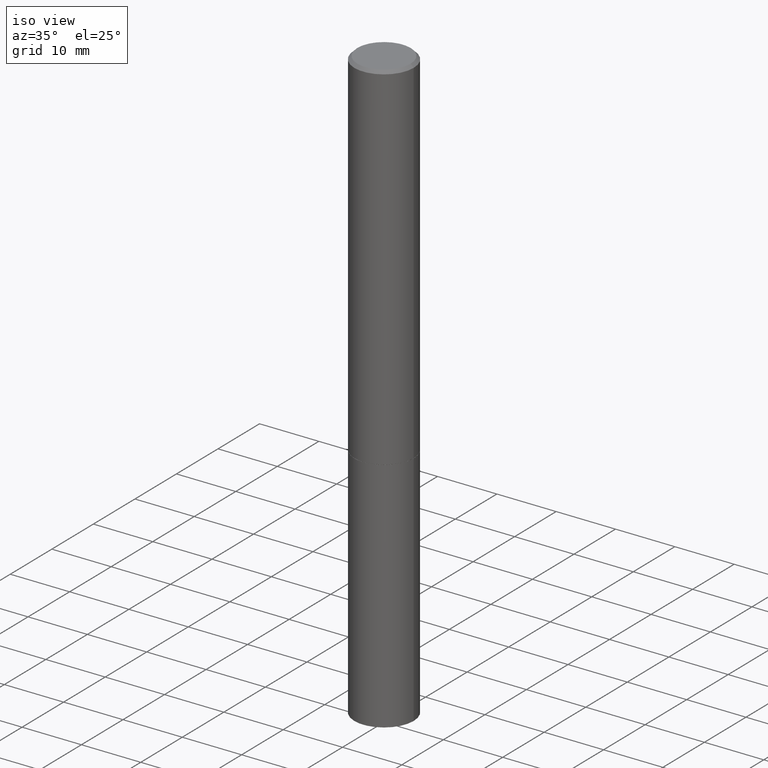
[diagram: clean part render]
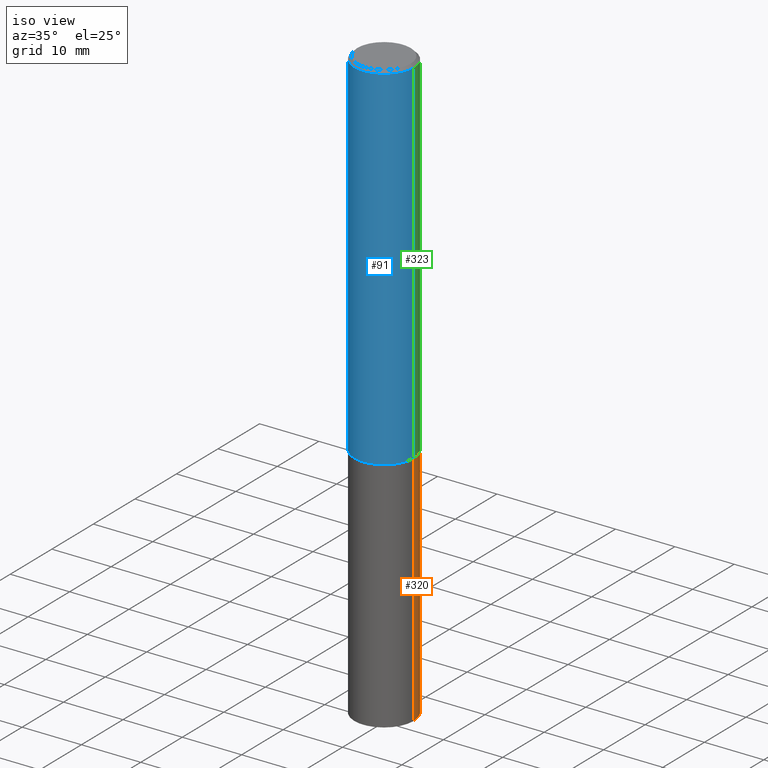
[diagram: same view with three faces highlighted in distinct colors, each labeled with its STEP entity id]
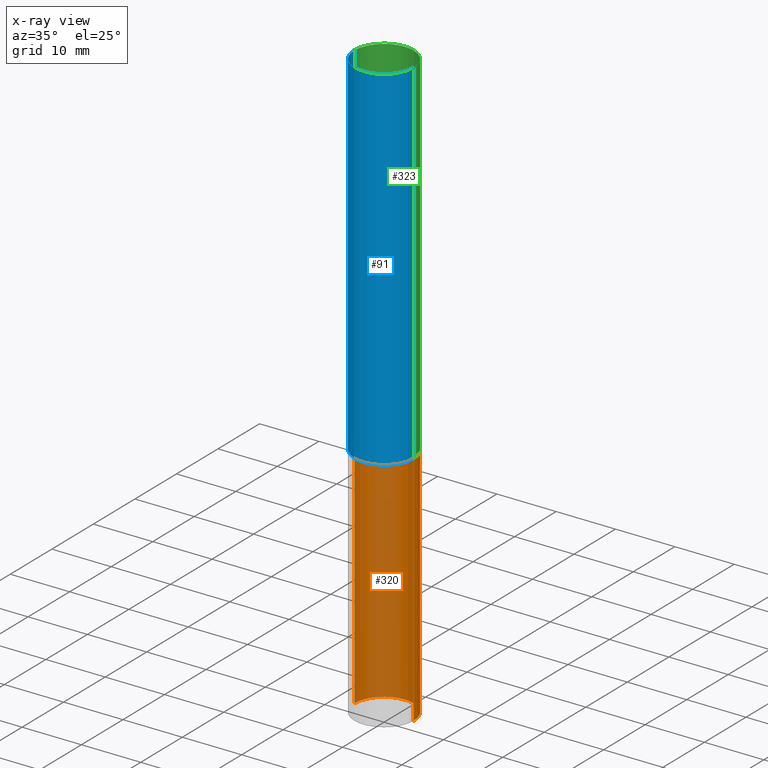
[diagram: x-ray of the same camera — body ghosted, the three highlighted faces saturated]
A machine part, iso view with three faces highlighted in distinct colors.
The next image is the same camera in x-ray (body ghosted, the three faces saturated) — at least one of them is partly hidden behind the body in this view.
Their STEP definitions:

[orange] entity #320 — the highlighted cylindrical surface (edge-blend (fillet) strip) has radius 5 mm, axis along (-0, 0, 1).
#1 = DIRECTION ( 'NONE',  ( -2.445468806185136877E-29, 3.491481338843145188E-15, 1.000000000000000000 ) ) ;
#15 = CARTESIAN_POINT ( 'NONE',  ( 0.000000000000000000, 0.000000000000000000, 0.000000000000000000 ) ) ;
#22 = ORIENTED_EDGE ( 'NONE', *, *, #25, .T. ) ;
#25 = EDGE_CURVE ( 'NONE', #173, #247, #142, .T. ) ;
#45 = AXIS2_PLACEMENT_3D ( 'NONE', #15, #267, #71 ) ;
#71 = DIRECTION ( 'NONE',  ( 1.000000000000000000, -6.982962677686265922E-15, 4.876176775795935793E-29 ) ) ;
#78 = DIRECTION ( 'NONE',  ( -2.445468806185136597E-29, 3.491481338843145583E-15, 1.000000000000000000 ) ) ;
#83 = EDGE_CURVE ( 'NONE', #272, #169, #88, .T. ) ;
#88 = LINE ( 'NONE', #197, #236 ) ;
#105 = CYLINDRICAL_SURFACE ( 'NONE', #45, 0.1968500000000000250 ) ;
#126 = FACE_OUTER_BOUND ( 'NONE', #229, .T. ) ;
#132 = CARTESIAN_POINT ( 'NONE',  ( 0.1968500000000000250, -9.622173421717819657E-15, -2.362199999999999633 ) ) ;
#142 = LINE ( 'NONE', #251, #290 ) ;
#153 = ORIENTED_EDGE ( 'NONE', *, *, #83, .F. ) ;
#157 = CARTESIAN_POINT ( 'NONE',  ( -0.1968500000000000250, -9.598066249476613733E-15, -3.937000000000000277 ) ) ;
#163 = DIRECTION ( 'NONE',  ( 1.000000000000000000, -6.982962677686267499E-15, 0.000000000000000000 ) ) ;
#169 = VERTEX_POINT ( 'NONE', #132 ) ;
#173 = VERTEX_POINT ( 'NONE', #157 ) ;
#177 = EDGE_CURVE ( 'NONE', #169, #247, #221, .T. ) ;
#193 = CARTESIAN_POINT ( 'NONE',  ( 5.776686413970529753E-29, -8.247577218615278049E-15, -2.362199999999999633 ) ) ;
#197 = CARTESIAN_POINT ( 'NONE',  ( 0.1968500000000000250, -1.374596203102541608E-15, 9.598753983154300858E-30 ) ) ;
#199 = ORIENTED_EDGE ( 'NONE', *, *, #234, .T. ) ;
#201 = DIRECTION ( 'NONE',  ( -2.445468806185136877E-29, 3.491481338843145188E-15, 1.000000000000000000 ) ) ;
#202 = CIRCLE ( 'NONE', #283, 0.1968500000000000250 ) ;
#221 = CIRCLE ( 'NONE', #326, 0.1968500000000000250 ) ;
#229 = EDGE_LOOP ( 'NONE', ( #199, #22, #284, #153 ) ) ;
#234 = EDGE_CURVE ( 'NONE', #272, #173, #202, .T. ) ;
#236 = VECTOR ( 'NONE', #1, 39.37007874015748143 ) ;
#247 = VERTEX_POINT ( 'NONE', #273 ) ;
#251 = CARTESIAN_POINT ( 'NONE',  ( -0.1968500000000000250, 1.398703375343757393E-15, -9.682923725166783677E-30 ) ) ;
#267 = DIRECTION ( 'NONE',  ( -2.445468806185136597E-29, 3.491481338843145583E-15, 1.000000000000000000 ) ) ;
#271 = DIRECTION ( 'NONE',  ( -2.445468806185136597E-29, 3.491481338843145583E-15, 1.000000000000000000 ) ) ;
#272 = VERTEX_POINT ( 'NONE', #325 ) ;
#273 = CARTESIAN_POINT ( 'NONE',  ( -0.1968500000000000250, -9.598066249476613733E-15, -2.362199999999999633 ) ) ;
#283 = AXIS2_PLACEMENT_3D ( 'NONE', #296, #78, #163 ) ;
#284 = ORIENTED_EDGE ( 'NONE', *, *, #177, .F. ) ;
#290 = VECTOR ( 'NONE', #201, 39.37007874015748143 ) ;
#296 = CARTESIAN_POINT ( 'NONE',  ( 9.627810689950883669E-29, -1.374596203102546341E-14, -3.937000000000000277 ) ) ;
#320 = ADVANCED_FACE ( 'NONE', ( #126 ), #105, .T. ) ;
#325 = CARTESIAN_POINT ( 'NONE',  ( 0.1968500000000000250, -1.512055823412800660E-14, -3.937000000000000277 ) ) ;
#326 = AXIS2_PLACEMENT_3D ( 'NONE', #193, #271, #362 ) ;
#362 = DIRECTION ( 'NONE',  ( 1.000000000000000000, -6.982962677686262766E-15, 0.000000000000000000 ) ) ;

[blue] entity #91 — the highlighted cylindrical surface (edge-blend (fillet) strip) has radius 5 mm, axis along (-0, 0, 1).
#17 = CIRCLE ( 'NONE', #143, 0.1968499999999997474 ) ;
#19 = CARTESIAN_POINT ( 'NONE',  ( 4.890937612370284544E-31, -6.982962677686307633E-17, -0.02000000000000004552 ) ) ;
#21 = CARTESIAN_POINT ( 'NONE',  ( -0.1968499999999998307, 1.398703375343756013E-15, -9.682923725166775270E-30 ) ) ;
#23 = CARTESIAN_POINT ( 'NONE',  ( 5.774240945164344150E-29, -8.244085737276433464E-15, -2.361199999999999743 ) ) ;
#34 = DIRECTION ( 'NONE',  ( -2.445468806185136597E-29, 3.491481338843145583E-15, 1.000000000000000000 ) ) ;
#39 = LINE ( 'NONE', #21, #174 ) ;
#76 = VERTEX_POINT ( 'NONE', #334 ) ;
#77 = AXIS2_PLACEMENT_3D ( 'NONE', #287, #34, #208 ) ;
#80 = VERTEX_POINT ( 'NONE', #224 ) ;
#84 = ORIENTED_EDGE ( 'NONE', *, *, #164, .F. ) ;
#91 = ADVANCED_FACE ( 'NONE', ( #346 ), #181, .T. ) ;
#104 = CARTESIAN_POINT ( 'NONE',  ( -0.1968499999999997474, 1.304766576325676732E-15, -0.02000000000000004552 ) ) ;
#115 = EDGE_LOOP ( 'NONE', ( #84, #191, #133, #279 ) ) ;
#119 = VECTOR ( 'NONE', #218, 39.37007874015748143 ) ;
#130 = CARTESIAN_POINT ( 'NONE',  ( 0.1968499999999999694, -9.618681940378976650E-15, -2.361199999999999743 ) ) ;
#133 = ORIENTED_EDGE ( 'NONE', *, *, #259, .T. ) ;
#136 = AXIS2_PLACEMENT_3D ( 'NONE', #23, #175, #328 ) ;
#143 = AXIS2_PLACEMENT_3D ( 'NONE', #19, #301, #265 ) ;
#160 = VERTEX_POINT ( 'NONE', #130 ) ;
#164 = EDGE_CURVE ( 'NONE', #76, #219, #39, .T. ) ;
#174 = VECTOR ( 'NONE', #216, 39.37007874015748143 ) ;
#175 = DIRECTION ( 'NONE',  ( -2.445468806185136597E-29, 3.491481338843145583E-15, 1.000000000000000000 ) ) ;
#180 = EDGE_CURVE ( 'NONE', #219, #80, #17, .T. ) ;
#181 = CYLINDRICAL_SURFACE ( 'NONE', #77, 0.1968499999999998307 ) ;
#191 = ORIENTED_EDGE ( 'NONE', *, *, #361, .T. ) ;
#208 = DIRECTION ( 'NONE',  ( 1.000000000000000000, -6.982962677686266711E-15, 4.876176775795935793E-29 ) ) ;
#213 = CARTESIAN_POINT ( 'NONE',  ( 0.1968499999999998307, -1.374596203102540425E-15, 9.598753983154291049E-30 ) ) ;
#216 = DIRECTION ( 'NONE',  ( -2.445468806185136877E-29, 3.491481338843145188E-15, 1.000000000000000000 ) ) ;
#218 = DIRECTION ( 'NONE',  ( -2.445468806185136877E-29, 3.491481338843145188E-15, 1.000000000000000000 ) ) ;
#219 = VERTEX_POINT ( 'NONE', #104 ) ;
#220 = LINE ( 'NONE', #213, #119 ) ;
#224 = CARTESIAN_POINT ( 'NONE',  ( 0.1968499999999997474, -1.420318657638187347E-15, -0.02000000000000004552 ) ) ;
#259 = EDGE_CURVE ( 'NONE', #160, #80, #220, .T. ) ;
#265 = DIRECTION ( 'NONE',  ( 1.000000000000000000, -6.982962677686266711E-15, 0.000000000000000000 ) ) ;
#279 = ORIENTED_EDGE ( 'NONE', *, *, #180, .F. ) ;
#287 = CARTESIAN_POINT ( 'NONE',  ( 0.000000000000000000, 0.000000000000000000, 0.000000000000000000 ) ) ;
#301 = DIRECTION ( 'NONE',  ( -2.445468806185136597E-29, 3.491481338843145583E-15, 1.000000000000000000 ) ) ;
#328 = DIRECTION ( 'NONE',  ( 1.000000000000000000, -6.982962677686269866E-15, 0.000000000000000000 ) ) ;
#334 = CARTESIAN_POINT ( 'NONE',  ( -0.1968499999999999694, -2.758254306682888621E-15, -2.361199999999999743 ) ) ;
#346 = FACE_OUTER_BOUND ( 'NONE', #115, .T. ) ;
#357 = CIRCLE ( 'NONE', #136, 0.1968499999999999694 ) ;
#361 = EDGE_CURVE ( 'NONE', #76, #160, #357, .T. ) ;

[green] entity #323 — the highlighted cylindrical surface (edge-blend (fillet) strip) has radius 5 mm, axis along (-0, 0, 1).
#5 = CARTESIAN_POINT ( 'NONE',  ( 5.774240945164344150E-29, -8.244085737276433464E-15, -2.361199999999999743 ) ) ;
#12 = DIRECTION ( 'NONE',  ( 1.000000000000000000, -6.982962677686266711E-15, 0.000000000000000000 ) ) ;
#14 = CARTESIAN_POINT ( 'NONE',  ( 0.000000000000000000, 0.000000000000000000, 0.000000000000000000 ) ) ;
#21 = CARTESIAN_POINT ( 'NONE',  ( -0.1968499999999998307, 1.398703375343756013E-15, -9.682923725166775270E-30 ) ) ;
#27 = ORIENTED_EDGE ( 'NONE', *, *, #107, .T. ) ;
#39 = LINE ( 'NONE', #21, #174 ) ;
#41 = FACE_OUTER_BOUND ( 'NONE', #166, .T. ) ;
#72 = DIRECTION ( 'NONE',  ( -2.445468806185136597E-29, 3.491481338843145583E-15, 1.000000000000000000 ) ) ;
#76 = VERTEX_POINT ( 'NONE', #334 ) ;
#80 = VERTEX_POINT ( 'NONE', #224 ) ;
#90 = AXIS2_PLACEMENT_3D ( 'NONE', #5, #121, #344 ) ;
#103 = AXIS2_PLACEMENT_3D ( 'NONE', #151, #72, #12 ) ;
#104 = CARTESIAN_POINT ( 'NONE',  ( -0.1968499999999997474, 1.304766576325676732E-15, -0.02000000000000004552 ) ) ;
#107 = EDGE_CURVE ( 'NONE', #160, #76, #340, .T. ) ;
#119 = VECTOR ( 'NONE', #218, 39.37007874015748143 ) ;
#121 = DIRECTION ( 'NONE',  ( -2.445468806185136597E-29, 3.491481338843145583E-15, 1.000000000000000000 ) ) ;
#130 = CARTESIAN_POINT ( 'NONE',  ( 0.1968499999999999694, -9.618681940378976650E-15, -2.361199999999999743 ) ) ;
#151 = CARTESIAN_POINT ( 'NONE',  ( 4.890937612370284544E-31, -6.982962677686307633E-17, -0.02000000000000004552 ) ) ;
#160 = VERTEX_POINT ( 'NONE', #130 ) ;
#164 = EDGE_CURVE ( 'NONE', #76, #219, #39, .T. ) ;
#166 = EDGE_LOOP ( 'NONE', ( #27, #275, #214, #222 ) ) ;
#174 = VECTOR ( 'NONE', #216, 39.37007874015748143 ) ;
#190 = CYLINDRICAL_SURFACE ( 'NONE', #270, 0.1968499999999998307 ) ;
#213 = CARTESIAN_POINT ( 'NONE',  ( 0.1968499999999998307, -1.374596203102540425E-15, 9.598753983154291049E-30 ) ) ;
#214 = ORIENTED_EDGE ( 'NONE', *, *, #312, .F. ) ;
#216 = DIRECTION ( 'NONE',  ( -2.445468806185136877E-29, 3.491481338843145188E-15, 1.000000000000000000 ) ) ;
#218 = DIRECTION ( 'NONE',  ( -2.445468806185136877E-29, 3.491481338843145188E-15, 1.000000000000000000 ) ) ;
#219 = VERTEX_POINT ( 'NONE', #104 ) ;
#220 = LINE ( 'NONE', #213, #119 ) ;
#222 = ORIENTED_EDGE ( 'NONE', *, *, #259, .F. ) ;
#224 = CARTESIAN_POINT ( 'NONE',  ( 0.1968499999999997474, -1.420318657638187347E-15, -0.02000000000000004552 ) ) ;
#259 = EDGE_CURVE ( 'NONE', #160, #80, #220, .T. ) ;
#270 = AXIS2_PLACEMENT_3D ( 'NONE', #14, #324, #297 ) ;
#275 = ORIENTED_EDGE ( 'NONE', *, *, #164, .T. ) ;
#297 = DIRECTION ( 'NONE',  ( 1.000000000000000000, -6.982962677686266711E-15, 4.876176775795935793E-29 ) ) ;
#312 = EDGE_CURVE ( 'NONE', #80, #219, #363, .T. ) ;
#323 = ADVANCED_FACE ( 'NONE', ( #41 ), #190, .T. ) ;
#324 = DIRECTION ( 'NONE',  ( -2.445468806185136597E-29, 3.491481338843145583E-15, 1.000000000000000000 ) ) ;
#334 = CARTESIAN_POINT ( 'NONE',  ( -0.1968499999999999694, -2.758254306682888621E-15, -2.361199999999999743 ) ) ;
#340 = CIRCLE ( 'NONE', #90, 0.1968499999999999694 ) ;
#344 = DIRECTION ( 'NONE',  ( 1.000000000000000000, -6.982962677686269866E-15, 0.000000000000000000 ) ) ;
#363 = CIRCLE ( 'NONE', #103, 0.1968499999999997474 ) ;